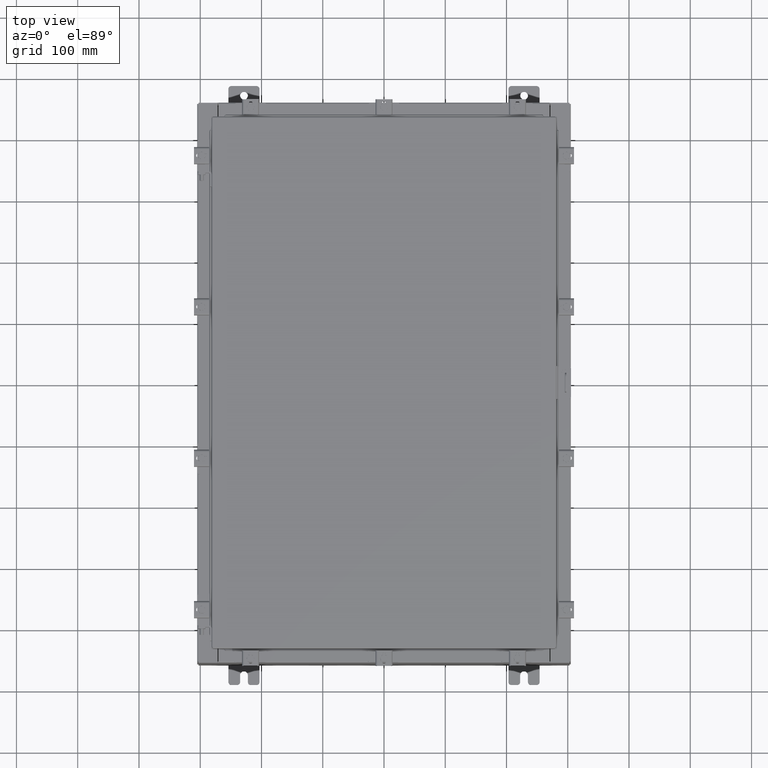
[diagram: clean part render]
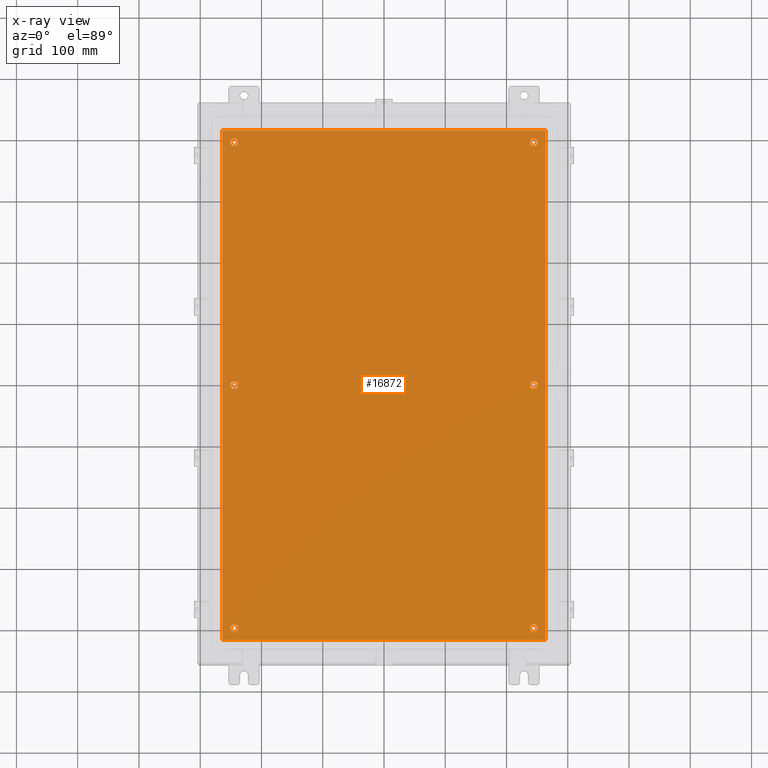
[diagram: x-ray — body ghosted, one internal face saturated and labeled with its STEP entity id]
A machine part, top view, then the same camera in x-ray: the body is ghosted and one INTERNAL B-rep face — a face not visible from any outside direction — is saturated and labeled: STEP entity #16872.
In plain terms, the highlighted planar face has unit normal (0, 0, -1).
Its self-contained STEP definition (entity closure, byte-faithful):
#49 = ORIENTED_EDGE ( 'NONE', *, *, #20301, .T. ) ;
#68 = VERTEX_POINT ( 'NONE', #78 ) ;
#78 = CARTESIAN_POINT ( 'NONE',  ( -9.375000000000007100, -15.62500000000000200, -0.1039999999999999800 ) ) ;
#115 = DIRECTION ( 'NONE',  ( -0.0000000000000000000, -0.0000000000000000000, 1.000000000000000000 ) ) ;
#176 = CARTESIAN_POINT ( 'NONE',  ( 10.38300000000000100, 16.38300000000000300, -0.1040000000000009100 ) ) ;
#194 = CARTESIAN_POINT ( 'NONE',  ( 9.375000000000007100, 2.650915570591087300E-015, -0.1039999999999999800 ) ) ;
#715 = DIRECTION ( 'NONE',  ( -1.000000000000000000, 0.0000000000000000000, 0.0000000000000000000 ) ) ;
#1228 = DIRECTION ( 'NONE',  ( -1.000000000000000000, 0.0000000000000000000, -0.0000000000000000000 ) ) ;
#1364 = CIRCLE ( 'NONE', #7148, 0.2500000000000008900 ) ;
#1741 = CARTESIAN_POINT ( 'NONE',  ( -10.38300000000000100, 16.38300000000000300, -0.1039999999999987600 ) ) ;
#1786 = AXIS2_PLACEMENT_3D ( 'NONE', #14637, #3856, #16466 ) ;
#1841 = DIRECTION ( 'NONE',  ( -0.0000000000000000000, -0.0000000000000000000, 1.000000000000000000 ) ) ;
#1977 = DIRECTION ( 'NONE',  ( -0.0000000000000000000, -0.0000000000000000000, 1.000000000000000000 ) ) ;
#2208 = DIRECTION ( 'NONE',  ( 0.0000000000000000000, -1.000000000000000000, 0.0000000000000000000 ) ) ;
#2601 = CARTESIAN_POINT ( 'NONE',  ( 9.875000000000007100, -15.62500000000000200, -0.1039999999999999800 ) ) ;
#2658 = ORIENTED_EDGE ( 'NONE', *, *, #15831, .T. ) ;
#2666 = LINE ( 'NONE', #4334, #21252 ) ;
#3072 = CARTESIAN_POINT ( 'NONE',  ( 9.625000000000007100, -15.62500000000000200, -0.1039999999999999800 ) ) ;
#3149 = FACE_BOUND ( 'NONE', #8457, .T. ) ;
#3465 = DIRECTION ( 'NONE',  ( -0.0000000000000000000, -0.0000000000000000000, 1.000000000000000000 ) ) ;
#3552 = CARTESIAN_POINT ( 'NONE',  ( -9.625000000000007100, 15.62500000000000200, -0.1039999999999999800 ) ) ;
#3706 = FACE_BOUND ( 'NONE', #13959, .T. ) ;
#3856 = DIRECTION ( 'NONE',  ( -0.0000000000000000000, -0.0000000000000000000, 1.000000000000000000 ) ) ;
#4030 = EDGE_LOOP ( 'NONE', ( #16170, #10477 ) ) ;
#4125 = AXIS2_PLACEMENT_3D ( 'NONE', #10926, #115, #12718 ) ;
#4182 = ORIENTED_EDGE ( 'NONE', *, *, #18111, .F. ) ;
#4212 = CARTESIAN_POINT ( 'NONE',  ( -9.875000000000005300, 2.934704822324310800E-016, -0.1039999999999999800 ) ) ;
#4334 = CARTESIAN_POINT ( 'NONE',  ( -10.50000000000000200, -16.38299999999999600, -0.1040000000000009100 ) ) ;
#4378 = ORIENTED_EDGE ( 'NONE', *, *, #20620, .T. ) ;
#4471 = EDGE_CURVE ( 'NONE', #11198, #9564, #6020, .T. ) ;
#4593 = ORIENTED_EDGE ( 'NONE', *, *, #12634, .F. ) ;
#4886 = DIRECTION ( 'NONE',  ( -1.000000000000000000, 0.0000000000000000000, 0.0000000000000000000 ) ) ;
#5305 = DIRECTION ( 'NONE',  ( -0.0000000000000000000, -0.0000000000000000000, 1.000000000000000000 ) ) ;
#5348 = DIRECTION ( 'NONE',  ( -1.000000000000000000, 0.0000000000000000000, 0.0000000000000000000 ) ) ;
#5481 = VERTEX_POINT ( 'NONE', #4212 ) ;
#6020 = CIRCLE ( 'NONE', #16583, 0.2499999999999998100 ) ;
#6488 = ORIENTED_EDGE ( 'NONE', *, *, #19709, .T. ) ;
#6789 = DIRECTION ( 'NONE',  ( -1.000000000000000000, -0.0000000000000000000, -0.0000000000000000000 ) ) ;
#6812 = VERTEX_POINT ( 'NONE', #18078 ) ;
#6881 = VERTEX_POINT ( 'NONE', #14545 ) ;
#7148 = AXIS2_PLACEMENT_3D ( 'NONE', #8443, #21058, #10252 ) ;
#7552 = VERTEX_POINT ( 'NONE', #17151 ) ;
#7639 = VERTEX_POINT ( 'NONE', #20174 ) ;
#7934 = FACE_BOUND ( 'NONE', #8601, .T. ) ;
#8124 = CIRCLE ( 'NONE', #18036, 0.2500000000000008900 ) ;
#8262 = VECTOR ( 'NONE', #6789, 39.37007874015748100 ) ;
#8305 = EDGE_LOOP ( 'NONE', ( #6488, #11628 ) ) ;
#8435 = CARTESIAN_POINT ( 'NONE',  ( -10.38300000000000100, -16.38299999999999600, -0.1040000000000009100 ) ) ;
#8443 = CARTESIAN_POINT ( 'NONE',  ( -9.625000000000005300, 2.628543122537473900E-016, -0.1039999999999999800 ) ) ;
#8457 = EDGE_LOOP ( 'NONE', ( #4378, #10522 ) ) ;
#8544 = CARTESIAN_POINT ( 'NONE',  ( 10.50000000000000400, 16.38299999999999900, -0.1040000000000009100 ) ) ;
#8601 = EDGE_LOOP ( 'NONE', ( #22327, #17937 ) ) ;
#8969 = CIRCLE ( 'NONE', #10033, 0.2499999999999998100 ) ;
#9440 = AXIS2_PLACEMENT_3D ( 'NONE', #16100, #5305, #17931 ) ;
#9476 = VERTEX_POINT ( 'NONE', #12194 ) ;
#9564 = VERTEX_POINT ( 'NONE', #17801 ) ;
#9584 = DIRECTION ( 'NONE',  ( -1.000000000000000000, 0.0000000000000000000, 0.0000000000000000000 ) ) ;
#9614 = DIRECTION ( 'NONE',  ( -0.0000000000000000000, -0.0000000000000000000, 1.000000000000000000 ) ) ;
#9704 = CARTESIAN_POINT ( 'NONE',  ( 9.625000000000007100, 2.620299400612403500E-015, -0.1039999999999999800 ) ) ;
#9857 = CIRCLE ( 'NONE', #4125, 0.2500000000000008900 ) ;
#10033 = AXIS2_PLACEMENT_3D ( 'NONE', #22305, #11508, #715 ) ;
#10252 = DIRECTION ( 'NONE',  ( -1.000000000000000000, 0.0000000000000000000, 0.0000000000000000000 ) ) ;
#10281 = CARTESIAN_POINT ( 'NONE',  ( 9.625000000000007100, 2.620299400612403500E-015, -0.1039999999999999800 ) ) ;
#10421 = LINE ( 'NONE', #21968, #14647 ) ;
#10477 = ORIENTED_EDGE ( 'NONE', *, *, #4471, .T. ) ;
#10522 = ORIENTED_EDGE ( 'NONE', *, *, #19517, .T. ) ;
#10814 = ORIENTED_EDGE ( 'NONE', *, *, #15063, .F. ) ;
#10926 = CARTESIAN_POINT ( 'NONE',  ( -9.625000000000007100, -15.62500000000000200, -0.1039999999999999800 ) ) ;
#11173 = VECTOR ( 'NONE', #11895, 39.37007874015748100 ) ;
#11198 = VERTEX_POINT ( 'NONE', #194 ) ;
#11508 = DIRECTION ( 'NONE',  ( -0.0000000000000000000, -0.0000000000000000000, 1.000000000000000000 ) ) ;
#11628 = ORIENTED_EDGE ( 'NONE', *, *, #14089, .T. ) ;
#11756 = CIRCLE ( 'NONE', #14258, 0.2499999999999998100 ) ;
#11895 = DIRECTION ( 'NONE',  ( 0.0000000000000000000, 1.000000000000000000, 0.0000000000000000000 ) ) ;
#11986 = CARTESIAN_POINT ( 'NONE',  ( 9.375000000000007100, 15.62500000000000200, -0.1039999999999999800 ) ) ;
#12083 = DIRECTION ( 'NONE',  ( -1.000000000000000000, 0.0000000000000000000, 0.0000000000000000000 ) ) ;
#12194 = CARTESIAN_POINT ( 'NONE',  ( -9.875000000000007100, 15.62500000000000200, -0.1039999999999999800 ) ) ;
#12299 = AXIS2_PLACEMENT_3D ( 'NONE', #3072, #15679, #4886 ) ;
#12603 = CARTESIAN_POINT ( 'NONE',  ( 9.625000000000007100, 15.62500000000000200, -0.1039999999999999800 ) ) ;
#12634 = EDGE_CURVE ( 'NONE', #6881, #22083, #15973, .T. ) ;
#12661 = VERTEX_POINT ( 'NONE', #8435 ) ;
#12718 = DIRECTION ( 'NONE',  ( -1.000000000000000000, 0.0000000000000000000, 0.0000000000000000000 ) ) ;
#12743 = CARTESIAN_POINT ( 'NONE',  ( -9.625000000000005300, 2.628543122537473900E-016, -0.1039999999999999800 ) ) ;
#13049 = CARTESIAN_POINT ( 'NONE',  ( 9.875000000000007100, 15.62500000000000200, -0.1039999999999999800 ) ) ;
#13169 = ORIENTED_EDGE ( 'NONE', *, *, #14295, .F. ) ;
#13338 = EDGE_CURVE ( 'NONE', #7552, #20162, #17929, .T. ) ;
#13852 = VERTEX_POINT ( 'NONE', #11986 ) ;
#13867 = CIRCLE ( 'NONE', #1786, 0.2500000000000008900 ) ;
#13959 = EDGE_LOOP ( 'NONE', ( #49, #15749 ) ) ;
#14089 = EDGE_CURVE ( 'NONE', #5481, #18665, #15643, .T. ) ;
#14091 = EDGE_LOOP ( 'NONE', ( #2658, #17822 ) ) ;
#14254 = CARTESIAN_POINT ( 'NONE',  ( -9.625000000000007100, -15.62500000000000200, -0.1039999999999999800 ) ) ;
#14258 = AXIS2_PLACEMENT_3D ( 'NONE', #12603, #1841, #14408 ) ;
#14289 = AXIS2_PLACEMENT_3D ( 'NONE', #3552, #16158, #5348 ) ;
#14295 = EDGE_CURVE ( 'NONE', #12661, #6881, #2666, .T. ) ;
#14408 = DIRECTION ( 'NONE',  ( -1.000000000000000000, 0.0000000000000000000, 0.0000000000000000000 ) ) ;
#14545 = CARTESIAN_POINT ( 'NONE',  ( 10.38300000000000100, -16.38299999999999600, -0.1040000000000009100 ) ) ;
#14561 = DIRECTION ( 'NONE',  ( -1.000000000000000000, 0.0000000000000000000, 0.0000000000000000000 ) ) ;
#14614 = CARTESIAN_POINT ( 'NONE',  ( -9.375000000000005300, 2.628543122537473900E-016, -0.1039999999999999800 ) ) ;
#14637 = CARTESIAN_POINT ( 'NONE',  ( -9.625000000000007100, 15.62500000000000200, -0.1039999999999999800 ) ) ;
#14647 = VECTOR ( 'NONE', #2208, 39.37007874015748100 ) ;
#15063 = EDGE_CURVE ( 'NONE', #22083, #21270, #17299, .T. ) ;
#15567 = DIRECTION ( 'NONE',  ( 0.0000000000000000000, 0.0000000000000000000, -1.000000000000000000 ) ) ;
#15643 = CIRCLE ( 'NONE', #20635, 0.2500000000000008900 ) ;
#15679 = DIRECTION ( 'NONE',  ( -0.0000000000000000000, -0.0000000000000000000, 1.000000000000000000 ) ) ;
#15728 = CIRCLE ( 'NONE', #12299, 0.2499999999999998100 ) ;
#15731 = EDGE_CURVE ( 'NONE', #9476, #7639, #20370, .T. ) ;
#15749 = ORIENTED_EDGE ( 'NONE', *, *, #13338, .T. ) ;
#15831 = EDGE_CURVE ( 'NONE', #7639, #9476, #13867, .T. ) ;
#15895 = VERTEX_POINT ( 'NONE', #13049 ) ;
#15973 = LINE ( 'NONE', #17355, #11173 ) ;
#16074 = DIRECTION ( 'NONE',  ( -1.000000000000000000, 0.0000000000000000000, 0.0000000000000000000 ) ) ;
#16100 = CARTESIAN_POINT ( 'NONE',  ( 9.625000000000007100, -15.62500000000000200, -0.1039999999999999800 ) ) ;
#16158 = DIRECTION ( 'NONE',  ( -0.0000000000000000000, -0.0000000000000000000, 1.000000000000000000 ) ) ;
#16170 = ORIENTED_EDGE ( 'NONE', *, *, #19094, .T. ) ;
#16466 = DIRECTION ( 'NONE',  ( -1.000000000000000000, 0.0000000000000000000, 0.0000000000000000000 ) ) ;
#16583 = AXIS2_PLACEMENT_3D ( 'NONE', #9704, #9614, #9584 ) ;
#16844 = DIRECTION ( 'NONE',  ( 1.000000000000000000, -0.0000000000000000000, -0.0000000000000000000 ) ) ;
#16872 = ADVANCED_FACE ( 'NONE', ( #17548, #22322, #7934, #3706, #3149, #21756, #16969 ), #22818, .T. ) ;
#16957 = AXIS2_PLACEMENT_3D ( 'NONE', #10281, #22893, #12083 ) ;
#16969 = FACE_OUTER_BOUND ( 'NONE', #20059, .T. ) ;
#17151 = CARTESIAN_POINT ( 'NONE',  ( 9.375000000000007100, -15.62500000000000200, -0.1039999999999999800 ) ) ;
#17299 = LINE ( 'NONE', #8544, #8262 ) ;
#17355 = CARTESIAN_POINT ( 'NONE',  ( 10.38300000000000100, -16.38299999999999600, -0.1040000000000009100 ) ) ;
#17548 = FACE_BOUND ( 'NONE', #4030, .T. ) ;
#17801 = CARTESIAN_POINT ( 'NONE',  ( 9.875000000000007100, 2.620299400612403500E-015, -0.1039999999999999800 ) ) ;
#17822 = ORIENTED_EDGE ( 'NONE', *, *, #15731, .T. ) ;
#17929 = CIRCLE ( 'NONE', #9440, 0.2499999999999998100 ) ;
#17931 = DIRECTION ( 'NONE',  ( -1.000000000000000000, 0.0000000000000000000, 0.0000000000000000000 ) ) ;
#17937 = ORIENTED_EDGE ( 'NONE', *, *, #18634, .T. ) ;
#18036 = AXIS2_PLACEMENT_3D ( 'NONE', #14254, #3465, #16074 ) ;
#18078 = CARTESIAN_POINT ( 'NONE',  ( -9.875000000000007100, -15.62500000000000200, -0.1039999999999999800 ) ) ;
#18111 = EDGE_CURVE ( 'NONE', #21270, #12661, #10421, .T. ) ;
#18634 = EDGE_CURVE ( 'NONE', #6812, #68, #9857, .T. ) ;
#18665 = VERTEX_POINT ( 'NONE', #14614 ) ;
#19094 = EDGE_CURVE ( 'NONE', #9564, #11198, #21673, .T. ) ;
#19517 = EDGE_CURVE ( 'NONE', #13852, #15895, #8969, .T. ) ;
#19709 = EDGE_CURVE ( 'NONE', #18665, #5481, #1364, .T. ) ;
#19870 = EDGE_CURVE ( 'NONE', #68, #6812, #8124, .T. ) ;
#20059 = EDGE_LOOP ( 'NONE', ( #13169, #4182, #10814, #4593 ) ) ;
#20162 = VERTEX_POINT ( 'NONE', #2601 ) ;
#20174 = CARTESIAN_POINT ( 'NONE',  ( -9.375000000000007100, 15.62500000000000200, -0.1039999999999999800 ) ) ;
#20301 = EDGE_CURVE ( 'NONE', #20162, #7552, #15728, .T. ) ;
#20370 = CIRCLE ( 'NONE', #14289, 0.2500000000000008900 ) ;
#20620 = EDGE_CURVE ( 'NONE', #15895, #13852, #11756, .T. ) ;
#20635 = AXIS2_PLACEMENT_3D ( 'NONE', #12743, #1977, #14561 ) ;
#20966 = AXIS2_PLACEMENT_3D ( 'NONE', #20999, #15567, #1228 ) ;
#20999 = CARTESIAN_POINT ( 'NONE',  ( 0.0000000000000000000, 0.0000000000000000000, -0.1039999999999999800 ) ) ;
#21058 = DIRECTION ( 'NONE',  ( -0.0000000000000000000, -0.0000000000000000000, 1.000000000000000000 ) ) ;
#21252 = VECTOR ( 'NONE', #16844, 39.37007874015748100 ) ;
#21270 = VERTEX_POINT ( 'NONE', #1741 ) ;
#21673 = CIRCLE ( 'NONE', #16957, 0.2499999999999998100 ) ;
#21756 = FACE_BOUND ( 'NONE', #14091, .T. ) ;
#21968 = CARTESIAN_POINT ( 'NONE',  ( -10.38300000000000100, 16.38300000000000300, -0.1039999999999987600 ) ) ;
#22083 = VERTEX_POINT ( 'NONE', #176 ) ;
#22305 = CARTESIAN_POINT ( 'NONE',  ( 9.625000000000007100, 15.62500000000000200, -0.1039999999999999800 ) ) ;
#22322 = FACE_BOUND ( 'NONE', #8305, .T. ) ;
#22327 = ORIENTED_EDGE ( 'NONE', *, *, #19870, .T. ) ;
#22818 = PLANE ( 'NONE',  #20966 ) ;
#22893 = DIRECTION ( 'NONE',  ( -0.0000000000000000000, -0.0000000000000000000, 1.000000000000000000 ) ) ;